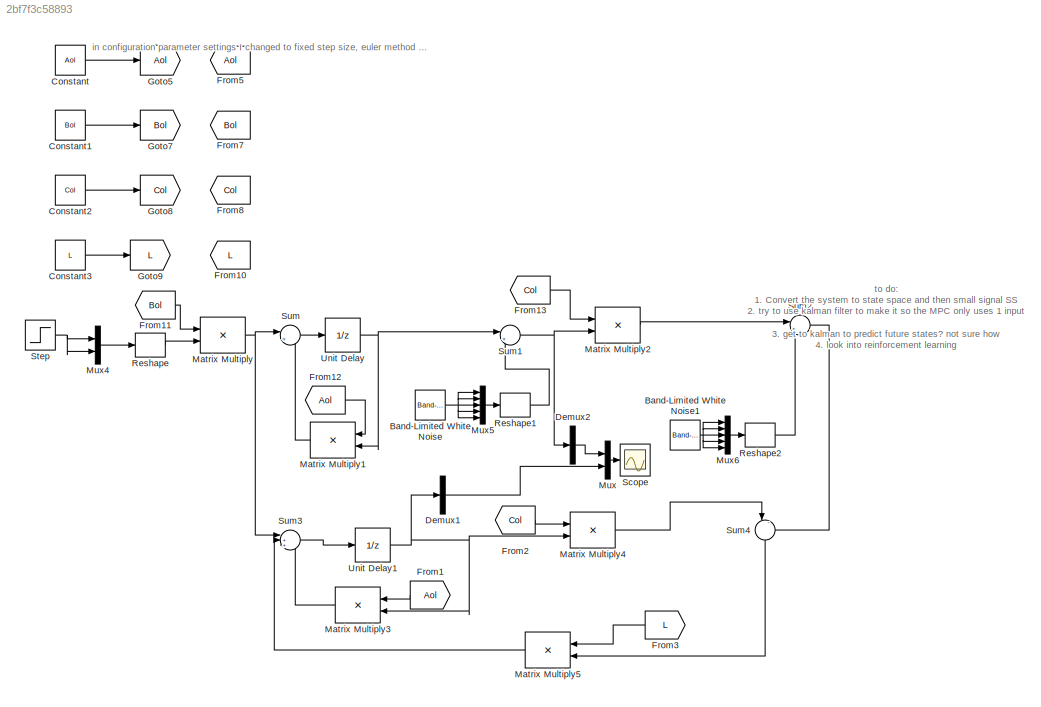
MODEL slx_2bf7f3c58893
KIND model
CONFIG AbsTol = auto
CONFIG EnableMultiTasking = off
CONFIG FixedStep = .05
CONFIG MaxStep = auto
CONFIG MinStep = auto
CONFIG RelTol = 1e-3
CONFIG SampleTimeConstraint = Unconstrained
CONFIG SolverName = ode1
CONFIG StartTime = 0.0
CONFIG StopTime = 10.0
BLOCK [Reference] Band-Limited White Noise  REF=simulink/Sources/Band-Limited
White Noise
  Ports = [0, 1]
  SourceBlock = simulink/Sources/Band-Limited\nWhite Noise
  SourceProductBaseCode = SL
  SourceType = Band-Limited White Noise.
BLOCK [Reference] Band-Limited White Noise1  REF=simulink/Sources/Band-Limited
White Noise
  Ports = [0, 1]
  SourceBlock = simulink/Sources/Band-Limited\nWhite Noise
  SourceProductBaseCode = SL
  SourceType = Band-Limited White Noise.
BLOCK [Constant] Constant
  Value = Aol
BLOCK [Constant] Constant1
  Value = Bol
BLOCK [Constant] Constant2
  Value = Col
BLOCK [Constant] Constant3
  Value = L
BLOCK [Demux] Demux1
  Outputs = 5
  Ports = [1, 5]
BLOCK [Demux] Demux2
  Outputs = 5
  Ports = [1, 5]
BLOCK [From] From1
  GotoTag = Aol
BLOCK [From] From10
  GotoTag = L
BLOCK [From] From11
  GotoTag = Bol
BLOCK [From] From12
  GotoTag = Aol
BLOCK [From] From13
  GotoTag = Col
BLOCK [From] From2
  GotoTag = Col
BLOCK [From] From3
  GotoTag = L
BLOCK [From] From5
  GotoTag = Aol
BLOCK [From] From7
  GotoTag = Bol
BLOCK [From] From8
  GotoTag = Col
BLOCK [Goto] Goto5
  GotoTag = Aol
BLOCK [Goto] Goto7
  GotoTag = Bol
BLOCK [Goto] Goto8
  GotoTag = Col
  IconDisplay = Tag and signal name
BLOCK [Goto] Goto9
  GotoTag = L
BLOCK [Product] Matrix Multiply
  Multiplication = Matrix(*)
  Ports = [2, 1]
BLOCK [Product] Matrix Multiply1
  Multiplication = Matrix(*)
  Ports = [2, 1]
BLOCK [Product] Matrix Multiply2
  Multiplication = Matrix(*)
  Ports = [2, 1]
BLOCK [Product] Matrix Multiply3
  Multiplication = Matrix(*)
  Ports = [2, 1]
BLOCK [Product] Matrix Multiply4
  Multiplication = Matrix(*)
  Ports = [2, 1]
BLOCK [Product] Matrix Multiply5
  Multiplication = Matrix(*)
  Ports = [2, 1]
BLOCK [Mux] Mux
  DisplayOption = bar
  Inputs = 2
  Ports = [2, 1]
BLOCK [Mux] Mux4
  DisplayOption = bar
  Inputs = 2
  Ports = [2, 1]
BLOCK [Mux] Mux5
  DisplayOption = bar
  Inputs = 5
  Ports = [5, 1]
BLOCK [Mux] Mux6
  DisplayOption = bar
  Inputs = 5
  Ports = [5, 1]
BLOCK [Reshape] Reshape
  OutputDimensionality = Customize
  OutputDimensions = [2,1]
  Ports = [1, 1]
BLOCK [Reshape] Reshape1
  OutputDimensionality = Customize
  OutputDimensions = [5,1]
  Ports = [1, 1]
BLOCK [Reshape] Reshape2
  OutputDimensionality = Customize
  OutputDimensions = [5,1]
  Ports = [1, 1]
BLOCK [Scope] Scope
  Floating = off
  NumInputPorts = 1
  Ports = [1]
  ScopeSpecificationString = Simulink.scopes.TimeScopeBlockCfg('CurrentConfiguration', extmgr.ConfigurationSet(extmgr.Configuration('Core','General UI',true),extmgr.Configuration('Core','Source UI',true),extmgr.Configuration('Sources','WiredSimulink',true),extmgr.Configuration('Visuals','Time Domain',true,'SerializedDisplays',{struct('MinYLimReal','-8.74084','MaxYLimReal','6.07776','YLabelReal','','MinYLimMag','0.00000','MaxY...<+1368ch>
BLOCK [Step] Step
  SampleTime = 0
BLOCK [Sum] Sum
  Inputs = |++
  Ports = [2, 1]
BLOCK [Sum] Sum1
  Inputs = |++
  Ports = [2, 1]
BLOCK [Sum] Sum2
  Inputs = |++
  Ports = [2, 1]
BLOCK [Sum] Sum3
  Inputs = |+++
  Ports = [3, 1]
BLOCK [Sum] Sum4
  Inputs = |-+
  NameLocation = left
  Ports = [2, 1]
BLOCK [UnitDelay] Unit Delay
  HasFrameUpgradeWarning = on
  SampleTime = -1
BLOCK [UnitDelay] Unit Delay1
  HasFrameUpgradeWarning = on
  SampleTime = -1
ANNOTATION (root): in configuration parameter settings I changed to fixed step size, euler method sovling, and .05 sampling time, this will need changed when working the cirucit
ANNOTATION (root): to do: 1. Convert the system to state space and then small signal SS 2. try to use kalman filter to make it so the MPC only uses 1 input 3. get to kalman to predict future states? not sure how 4. look into reinforcement learning
NET Band-Limited White Noise1:1 -> Mux6:1, Mux6:2, Mux6:3, Mux6:4, Mux6:5
NET Band-Limited White Noise:1 -> Mux5:1, Mux5:2, Mux5:3, Mux5:4, Mux5:5
LINE Constant1:1 -> Goto7:1
LINE Constant2:1 -> Goto8:1
LINE Constant3:1 -> Goto9:1
LINE Constant:1 -> Goto5:1
LINE Demux1:3 -> Mux:2
LINE Demux2:3 -> Mux:1
LINE From11:1 -> Matrix Multiply:1
LINE From12:1 -> Matrix Multiply1:1
LINE From13:1 -> Matrix Multiply2:1
LINE From1:1 -> Matrix Multiply3:1
LINE From2:1 -> Matrix Multiply4:1
LINE From3:1 -> Matrix Multiply5:1
LINE Matrix Multiply1:1 -> Sum:2
LINE Matrix Multiply2:1 -> Sum2:1
LINE Matrix Multiply3:1 -> Sum3:3
LINE Matrix Multiply4:1 -> Sum4:1
LINE Matrix Multiply5:1 -> Sum3:2
NET Matrix Multiply:1 -> Sum3:1, Sum:1
LINE Mux4:1 -> Reshape:1
LINE Mux5:1 -> Reshape1:1
LINE Mux6:1 -> Reshape2:1
LINE Mux:1 -> Scope:1
LINE Reshape1:1 -> Sum1:2
LINE Reshape2:1 -> Sum2:2
LINE Reshape:1 -> Matrix Multiply:2
NET Step:1 -> Mux4:1, Mux4:2
NET Sum1:1 -> Demux2:1, Matrix Multiply2:2
LINE Sum2:1 -> Sum4:2
LINE Sum3:1 -> Unit Delay1:1
LINE Sum4:1 -> Matrix Multiply5:2
LINE Sum:1 -> Unit Delay:1
NET Unit Delay1:1 -> Demux1:1, Matrix Multiply3:2, Matrix Multiply4:2
NET Unit Delay:1 -> Matrix Multiply1:2, Sum1:1
note: NET lines group one-source signal fan-out (src -> all destinations, sorted); 1:1 wires keep LINE
